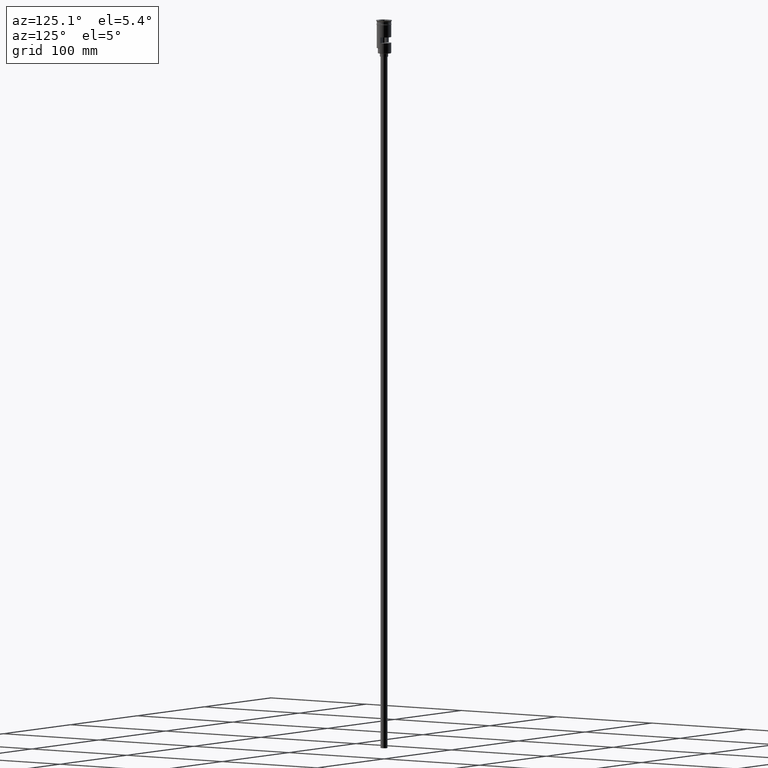
[diagram: clean part render]
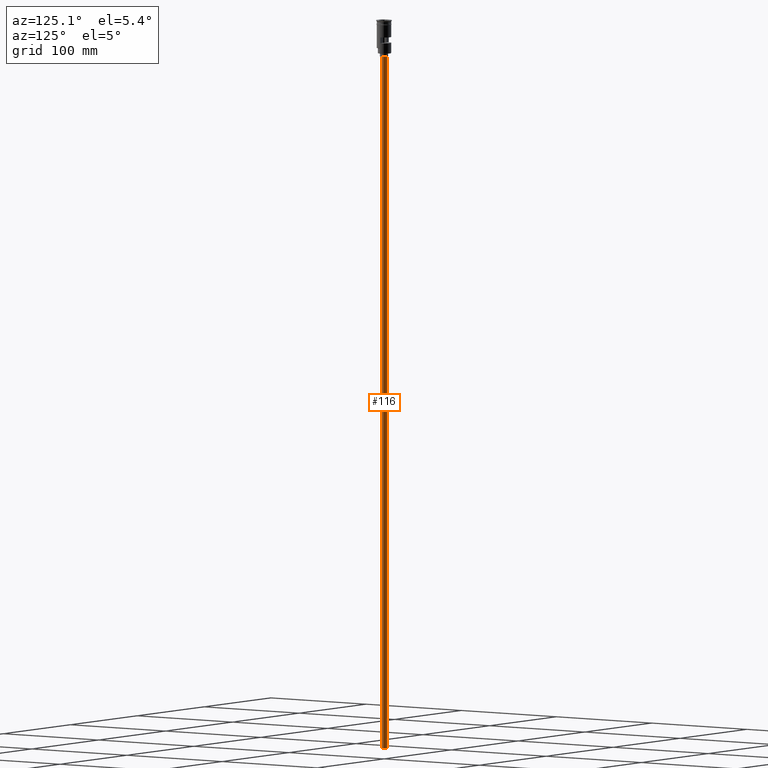
[diagram: same view with one face highlighted and labeled with its STEP entity id]
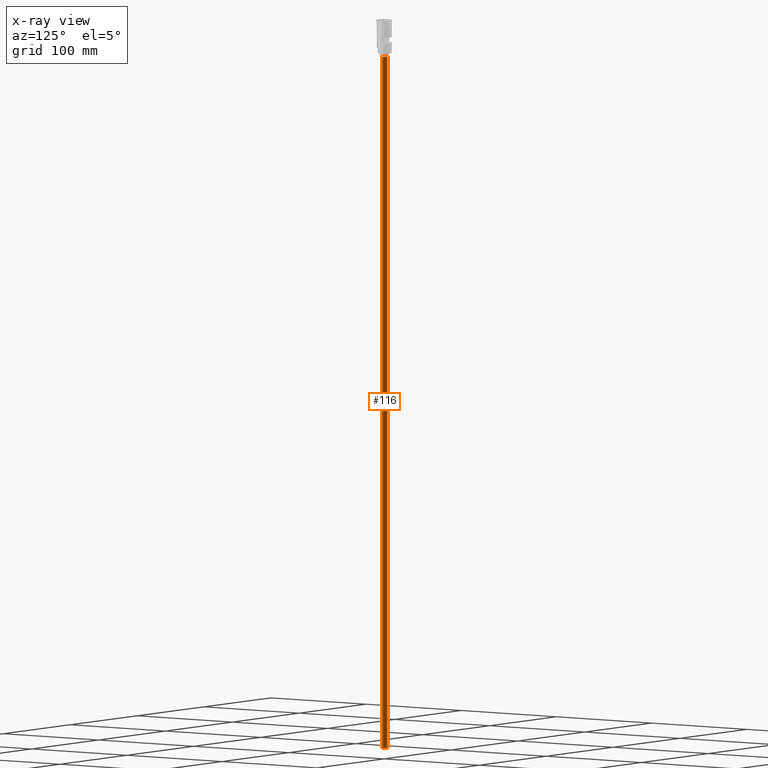
[diagram: x-ray of the same camera — body ghosted, the highlighted face saturated]
A machine part, auxiliary view. The second image highlights one B-rep face of the part: STEP entity #116.
The next image is the same camera in x-ray: the body ghosted, the highlighted face saturated — about 0% of this face is hidden behind the body in this view.
In plain terms, the highlighted cylindrical surface (edge-blend (fillet) strip) has radius 3 mm, axis along (-0, -0, 1).
Its self-contained STEP definition (entity closure, byte-faithful):
#33 = CARTESIAN_POINT ( 'NONE',  ( 0.000000000000000000, 0.000000000000000000, -628.5000000000000000 ) ) ;
#63 = LINE ( 'NONE', #798, #907 ) ;
#67 = AXIS2_PLACEMENT_3D ( 'NONE', #33, #69, #160 ) ;
#69 = DIRECTION ( 'NONE',  ( -0.000000000000000000, -0.000000000000000000, 1.000000000000000000 ) ) ;
#90 = EDGE_CURVE ( 'NONE', #103, #1467, #173, .T. ) ;
#92 = CIRCLE ( 'NONE', #996, 3.000000000000000444 ) ;
#103 = VERTEX_POINT ( 'NONE', #1169 ) ;
#116 = ADVANCED_FACE ( 'NONE', ( #1146 ), #542, .T. ) ;
#160 = DIRECTION ( 'NONE',  ( 1.000000000000000000, 0.000000000000000000, 0.000000000000000000 ) ) ;
#173 = LINE ( 'NONE', #520, #628 ) ;
#287 = DIRECTION ( 'NONE',  ( -0.000000000000000000, -0.000000000000000000, 1.000000000000000000 ) ) ;
#392 = DIRECTION ( 'NONE',  ( -1.000000000000000000, 0.000000000000000000, 0.000000000000000000 ) ) ;
#431 = CARTESIAN_POINT ( 'NONE',  ( -3.000000000000000444, 3.673940397442060361E-16, -31.50000000000000000 ) ) ;
#442 = ORIENTED_EDGE ( 'NONE', *, *, #90, .T. ) ;
#483 = CARTESIAN_POINT ( 'NONE',  ( 3.000000000000000444, 0.000000000000000000, -628.5000000000000000 ) ) ;
#513 = ORIENTED_EDGE ( 'NONE', *, *, #1340, .T. ) ;
#520 = CARTESIAN_POINT ( 'NONE',  ( -3.000000000000000444, 3.673940397442060361E-16, -628.5000000000000000 ) ) ;
#542 = CYLINDRICAL_SURFACE ( 'NONE', #67, 3.000000000000000444 ) ;
#628 = VECTOR ( 'NONE', #1419, 1000.000000000000000 ) ;
#798 = CARTESIAN_POINT ( 'NONE',  ( 3.000000000000000444, 0.000000000000000000, -628.5000000000000000 ) ) ;
#893 = CARTESIAN_POINT ( 'NONE',  ( 3.000000000000000444, 0.000000000000000000, -31.50000000000000000 ) ) ;
#907 = VECTOR ( 'NONE', #287, 1000.000000000000000 ) ;
#982 = DIRECTION ( 'NONE',  ( 0.000000000000000000, 0.000000000000000000, -1.000000000000000000 ) ) ;
#990 = AXIS2_PLACEMENT_3D ( 'NONE', #1145, #982, #1137 ) ;
#996 = AXIS2_PLACEMENT_3D ( 'NONE', #1377, #1511, #392 ) ;
#1137 = DIRECTION ( 'NONE',  ( -1.000000000000000000, 0.000000000000000000, 0.000000000000000000 ) ) ;
#1143 = EDGE_CURVE ( 'NONE', #103, #1373, #92, .T. ) ;
#1145 = CARTESIAN_POINT ( 'NONE',  ( 0.000000000000000000, 0.000000000000000000, -31.50000000000000000 ) ) ;
#1146 = FACE_OUTER_BOUND ( 'NONE', #1336, .T. ) ;
#1169 = CARTESIAN_POINT ( 'NONE',  ( -3.000000000000000444, 3.673940397442060361E-16, -628.5000000000000000 ) ) ;
#1202 = CIRCLE ( 'NONE', #990, 3.000000000000000444 ) ;
#1212 = ORIENTED_EDGE ( 'NONE', *, *, #1499, .F. ) ;
#1237 = ORIENTED_EDGE ( 'NONE', *, *, #1143, .F. ) ;
#1324 = VERTEX_POINT ( 'NONE', #893 ) ;
#1336 = EDGE_LOOP ( 'NONE', ( #1237, #442, #513, #1212 ) ) ;
#1340 = EDGE_CURVE ( 'NONE', #1467, #1324, #1202, .T. ) ;
#1373 = VERTEX_POINT ( 'NONE', #483 ) ;
#1377 = CARTESIAN_POINT ( 'NONE',  ( 0.000000000000000000, 0.000000000000000000, -628.5000000000000000 ) ) ;
#1419 = DIRECTION ( 'NONE',  ( -0.000000000000000000, -0.000000000000000000, 1.000000000000000000 ) ) ;
#1467 = VERTEX_POINT ( 'NONE', #431 ) ;
#1499 = EDGE_CURVE ( 'NONE', #1373, #1324, #63, .T. ) ;
#1511 = DIRECTION ( 'NONE',  ( 0.000000000000000000, 0.000000000000000000, -1.000000000000000000 ) ) ;